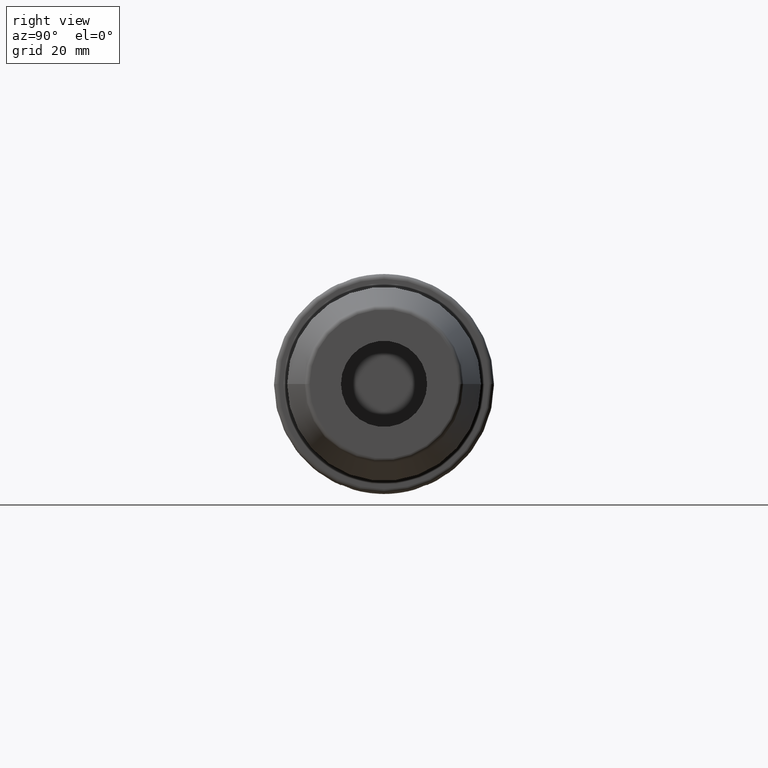
[diagram: clean part render]
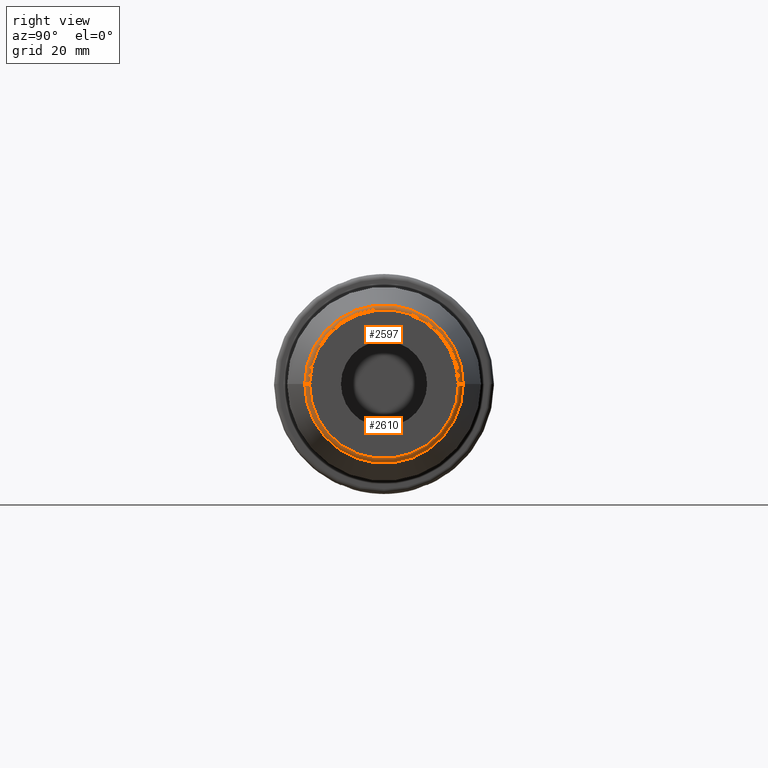
[diagram: same view with one multi-face feature highlighted, each face labeled with its STEP entity id]
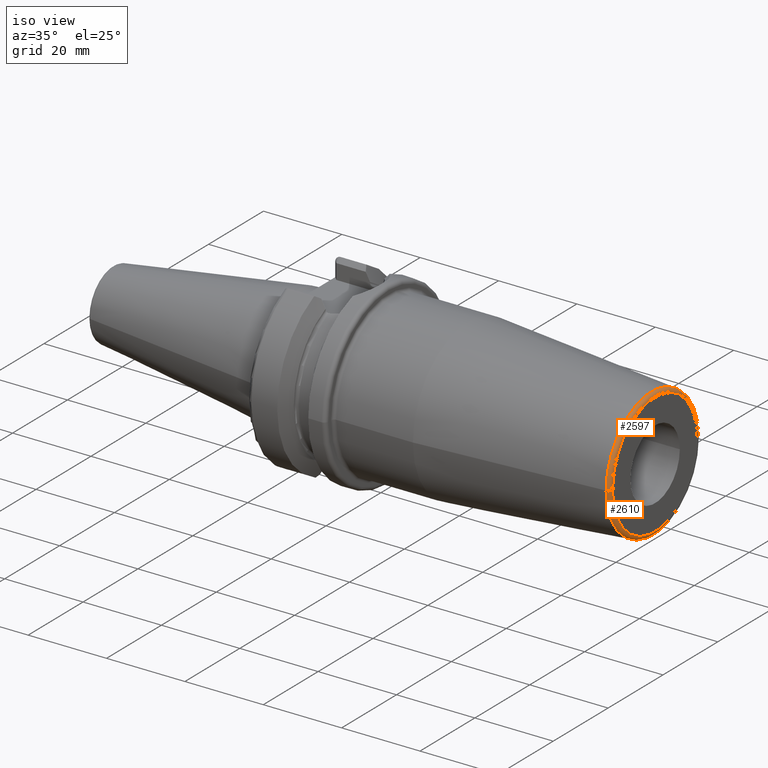
[diagram: same view with one multi-face feature highlighted, each face labeled with its STEP entity id]
A machine part, right view. The highlighted faces form ONE feature: a constant-radius fillet chain: 2 tangent blend faces with common blend radius 1 mm. The faces share edges in the B-rep.
A second angle (iso view) of the same feature is appended — it is thin or edge-on in the first view.
Their STEP definitions:
[1] entity #2610 (Torus):
#878=CARTESIAN_POINT('',(8.907845909573E1,0.E0,0.E0));
#879=DIRECTION('',(-1.E0,0.E0,0.E0));
#880=DIRECTION('',(0.E0,1.E0,0.E0));
#881=AXIS2_PLACEMENT_3D('',#878,#879,#880);
#888=CARTESIAN_POINT('',(8.9E1,-1.557560950834E1,-9.322626004504E-12));
#889=DIRECTION('',(0.E0,-5.985385798102E-13,1.E0));
#890=DIRECTION('',(7.845909572794E-2,-9.969173337331E-1,-5.966929091325E-13));
#891=AXIS2_PLACEMENT_3D('',#888,#889,#890);
#893=CARTESIAN_POINT('',(8.9E1,1.557560950834E1,9.325984429154E-12));
#894=DIRECTION('',(0.E0,5.987554202447E-13,-1.E0));
#895=DIRECTION('',(7.845909572794E-2,9.969173337331E-1,5.969090811203E-13));
#896=AXIS2_PLACEMENT_3D('',#893,#894,#895);
#908=CARTESIAN_POINT('',(9.E1,0.E0,0.E0));
#909=DIRECTION('',(-1.E0,0.E0,0.E0));
#910=DIRECTION('',(0.E0,1.E0,0.E0));
#911=AXIS2_PLACEMENT_3D('',#908,#909,#910);
#1395=CARTESIAN_POINT('',(8.907845909573E1,1.657252684207E1,
-3.221850256586E-13));
#1396=VERTEX_POINT('',#1395);
#1397=CARTESIAN_POINT('',(8.907845909573E1,-1.657252684207E1,
3.216706994660E-13));
#1398=VERTEX_POINT('',#1397);
#1399=CARTESIAN_POINT('',(9.E1,1.557560950834E1,1.376508735891E-14));
#1400=CARTESIAN_POINT('',(9.E1,-1.557560950834E1,-1.567254939182E-14));
#1401=VERTEX_POINT('',#1399);
#1402=VERTEX_POINT('',#1400);
#2598=CARTESIAN_POINT('',(8.9E1,0.E0,0.E0));
#2599=DIRECTION('',(1.E0,0.E0,0.E0));
#2600=DIRECTION('',(0.E0,9.999676281609E-1,8.046280521515E-3));
#2601=AXIS2_PLACEMENT_3D('',#2598,#2599,#2600);
#2602=TOROIDAL_SURFACE('',#2601,1.557560950834E1,1.E0);
#2603=ORIENTED_EDGE('',*,*,#2565,.T.);
#2604=ORIENTED_EDGE('',*,*,#2593,.T.);
#2606=ORIENTED_EDGE('',*,*,#2605,.F.);
#2607=ORIENTED_EDGE('',*,*,#2589,.F.);
#2608=EDGE_LOOP('',(#2603,#2604,#2606,#2607));
#2609=FACE_OUTER_BOUND('',#2608,.F.);
#2610=ADVANCED_FACE('',(#2609),#2602,.T.);
#882=CIRCLE('',#881,1.657252684207E1);
#892=CIRCLE('',#891,1.E0);
#897=CIRCLE('',#896,1.E0);
#912=CIRCLE('',#911,1.557560950834E1);
#2565=EDGE_CURVE('',#1396,#1398,#882,.T.);
#2589=EDGE_CURVE('',#1396,#1401,#897,.T.);
#2593=EDGE_CURVE('',#1398,#1402,#892,.T.);
#2605=EDGE_CURVE('',#1401,#1402,#912,.T.);
[2] entity #2597 (Torus):
#883=CARTESIAN_POINT('',(8.907845909573E1,0.E0,0.E0));
#884=DIRECTION('',(-1.E0,0.E0,0.E0));
#885=DIRECTION('',(0.E0,-1.E0,0.E0));
#886=AXIS2_PLACEMENT_3D('',#883,#884,#885);
#888=CARTESIAN_POINT('',(8.9E1,-1.557560950834E1,-9.322626004504E-12));
#889=DIRECTION('',(0.E0,-5.985385798102E-13,1.E0));
#890=DIRECTION('',(7.845909572794E-2,-9.969173337331E-1,-5.966929091325E-13));
#891=AXIS2_PLACEMENT_3D('',#888,#889,#890);
#893=CARTESIAN_POINT('',(8.9E1,1.557560950834E1,9.325984429154E-12));
#894=DIRECTION('',(0.E0,5.987554202447E-13,-1.E0));
#895=DIRECTION('',(7.845909572794E-2,9.969173337331E-1,5.969090811203E-13));
#896=AXIS2_PLACEMENT_3D('',#893,#894,#895);
#913=CARTESIAN_POINT('',(9.E1,0.E0,0.E0));
#914=DIRECTION('',(-1.E0,0.E0,0.E0));
#915=DIRECTION('',(0.E0,-1.E0,0.E0));
#916=AXIS2_PLACEMENT_3D('',#913,#914,#915);
#1395=CARTESIAN_POINT('',(8.907845909573E1,1.657252684207E1,
-3.221850256586E-13));
#1396=VERTEX_POINT('',#1395);
#1397=CARTESIAN_POINT('',(8.907845909573E1,-1.657252684207E1,
3.216706994660E-13));
#1398=VERTEX_POINT('',#1397);
#1399=CARTESIAN_POINT('',(9.E1,1.557560950834E1,1.376508735891E-14));
#1400=CARTESIAN_POINT('',(9.E1,-1.557560950834E1,-1.567254939182E-14));
#1401=VERTEX_POINT('',#1399);
#1402=VERTEX_POINT('',#1400);
#2583=CARTESIAN_POINT('',(8.9E1,0.E0,0.E0));
#2584=DIRECTION('',(1.E0,0.E0,0.E0));
#2585=DIRECTION('',(0.E0,-9.999676281609E-1,-8.046280521515E-3));
#2586=AXIS2_PLACEMENT_3D('',#2583,#2584,#2585);
#2587=TOROIDAL_SURFACE('',#2586,1.557560950834E1,1.E0);
#2588=ORIENTED_EDGE('',*,*,#2576,.T.);
#2590=ORIENTED_EDGE('',*,*,#2589,.T.);
#2592=ORIENTED_EDGE('',*,*,#2591,.F.);
#2594=ORIENTED_EDGE('',*,*,#2593,.F.);
#2595=EDGE_LOOP('',(#2588,#2590,#2592,#2594));
#2596=FACE_OUTER_BOUND('',#2595,.F.);
#2597=ADVANCED_FACE('',(#2596),#2587,.T.);
#887=CIRCLE('',#886,1.657252684207E1);
#892=CIRCLE('',#891,1.E0);
#897=CIRCLE('',#896,1.E0);
#917=CIRCLE('',#916,1.557560950834E1);
#2576=EDGE_CURVE('',#1398,#1396,#887,.T.);
#2589=EDGE_CURVE('',#1396,#1401,#897,.T.);
#2591=EDGE_CURVE('',#1402,#1401,#917,.T.);
#2593=EDGE_CURVE('',#1398,#1402,#892,.T.);